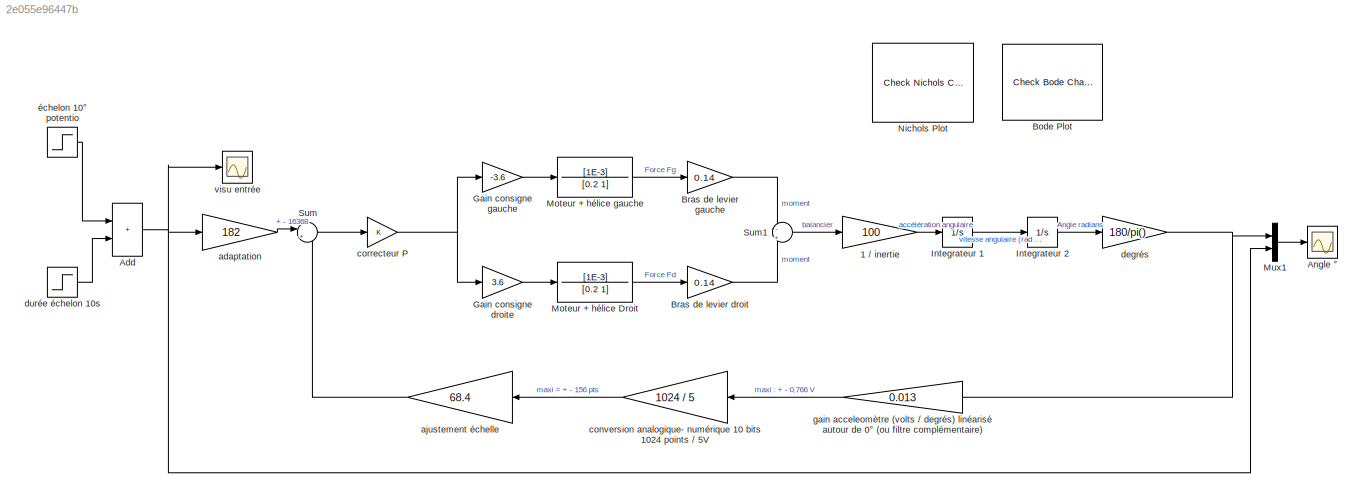
MODEL slx_2e055e96447b
KIND model
CONFIG AbsTol = auto
CONFIG EnableMultiTasking = on
CONFIG FixedStep = 0.003
CONFIG MaxStep = auto
CONFIG MinStep = auto
CONFIG RelTol = 1e-3
CONFIG SampleTimeConstraint = Unconstrained
CONFIG SolverName = ode45
CONFIG StartTime = 0.0
CONFIG StopTime = 20
BLOCK [Gain] 1 // inertie
  Gain = 100
BLOCK [Sum] Add
  IconShape = rectangular
  Ports = [2, 1]
BLOCK [Scope] Angle °
  Floating = off
  NumInputPorts = 1
  Ports = [1]
  ScopeSpecificationString = Simulink.scopes.TimeScopeBlockCfg('CurrentConfiguration', extmgr.ConfigurationSet(extmgr.Configuration('Core','General UI',true),extmgr.Configuration('Core','Source UI',true),extmgr.Configuration('Sources','WiredSimulink',true,'DataLoggingVariableName','ScopeData1','DataLoggingSaveFormat','StructureWithTime','DataLoggingDecimation','1','DataLoggingDecimateData',true),extmgr.Configuration('Visuals'...<+2170ch>
BLOCK [Reference] Bode Plot  REF=slctrlblks/Model Verification/Check Bode 
Characteristics
  InstantiateOnLoad = on
  Ports = []
  SourceBlock = slctrlblks/Model Verification/Check Bode \nCharacteristics
  SourceProductBaseCode = SD
  SourceType = Checks_Bode
BLOCK [Gain] Bras de levier droit
  Gain = 0.14
  NameLocation = top
BLOCK [Gain] Bras de levier gauche
  Gain = 0.14
  NameLocation = top
BLOCK [Gain] Gain consigne droite
  Gain = 3.6
BLOCK [Gain] Gain consigne gauche
  Gain = -3.6
BLOCK [Integrator] Integrateur 1
  Ports = [1, 1]
BLOCK [Integrator] Integrateur 2
  Ports = [1, 1]
BLOCK [TransferFcn] Moteur + hélice Droit
  Denominator = [0.2 1]
  NameLocation = top
  Numerator = [1E-3]
BLOCK [TransferFcn] Moteur + hélice gauche
  Denominator = [0.2 1]
  NameLocation = top
  Numerator = [1E-3]
BLOCK [Mux] Mux1
  DisplayOption = bar
  Inputs = 2
  Ports = [2, 1]
BLOCK [Reference] Nichols Plot  REF=slctrlblks/Model Verification/Check Nichols
Characteristics
  InstantiateOnLoad = on
  Ports = []
  SourceBlock = slctrlblks/Model Verification/Check Nichols\nCharacteristics
  SourceProductBaseCode = SD
  SourceType = Checks_Nichols
BLOCK [Sum] Sum
  Inputs = |+-
  Ports = [2, 1]
BLOCK [Sum] Sum1
  Inputs = -|+
  Ports = [2, 1]
BLOCK [Gain] adaptation
  Gain = 182
BLOCK [Gain] ajustement échelle
  Gain = 68.4
BLOCK [Gain] conversion analogique- numérique 10 bits 1024 points // 5V
  Gain = 1024 / 5
BLOCK [Gain] correcteur P
BLOCK [Gain] degrés
  Gain = 180/pi()
BLOCK [Step] durée échelon 10s
  After = -10
  SampleTime = 0
  Time = 10
BLOCK [Gain] gain acceleomètre (volts // degrés) linéarisé autour de 0° (ou filtre complémentaire)
  Gain = 0.013
BLOCK [Scope] visu entrée
  Floating = off
  NumInputPorts = 1
  Ports = [1]
  ScopeSpecificationString = Simulink.scopes.TimeScopeBlockCfg('CurrentConfiguration', extmgr.ConfigurationSet(extmgr.Configuration('Core','General UI',true),extmgr.Configuration('Core','Source UI',true),extmgr.Configuration('Sources','WiredSimulink',true,'DataLoggingVariableName','ScopeData2','DataLoggingSaveFormat','StructureWithTime','DataLoggingDecimation','1','DataLoggingDecimateData',true),extmgr.Configuration('Visuals'...<+1615ch>
BLOCK [Step] échelon 10° potentio
  After = 10
  SampleTime = 0
  Time = 0
LINE 1 // inertie:1 -> Integrateur 1:1
NET Add:1 -> Mux1:2, adaptation:1, visu entrée:1
LINE Bras de levier droit:1 -> Sum1:2
LINE Bras de levier gauche:1 -> Sum1:1
LINE Gain consigne droite:1 -> Moteur + hélice Droit:1
LINE Gain consigne gauche:1 -> Moteur + hélice gauche:1
LINE Integrateur 1:1 -> Integrateur 2:1
LINE Integrateur 2:1 -> degrés:1
LINE Moteur + hélice Droit:1 -> Bras de levier droit:1
LINE Moteur + hélice gauche:1 -> Bras de levier gauche:1
LINE Mux1:1 -> Angle °:1
LINE Sum1:1 -> 1 // inertie:1
LINE Sum:1 -> correcteur P:1
LINE adaptation:1 -> Sum:1
LINE ajustement échelle:1 -> Sum:2
LINE conversion analogique- numérique 10 bits 1024 points // 5V:1 -> ajustement échelle:1
NET correcteur P:1 -> Gain consigne droite:1, Gain consigne gauche:1
NET degrés:1 -> Mux1:1, gain acceleomètre (volts // degrés) linéarisé autour de 0° (ou filtre complémentaire):1
LINE durée échelon 10s:1 -> Add:2
LINE gain acceleomètre (volts // degrés) linéarisé autour de 0° (ou filtre complémentaire):1 -> conversion analogique- numérique 10 bits 1024 points // 5V:1
LINE échelon 10° potentio:1 -> Add:1
note: NET lines group one-source signal fan-out (src -> all destinations, sorted); 1:1 wires keep LINE
